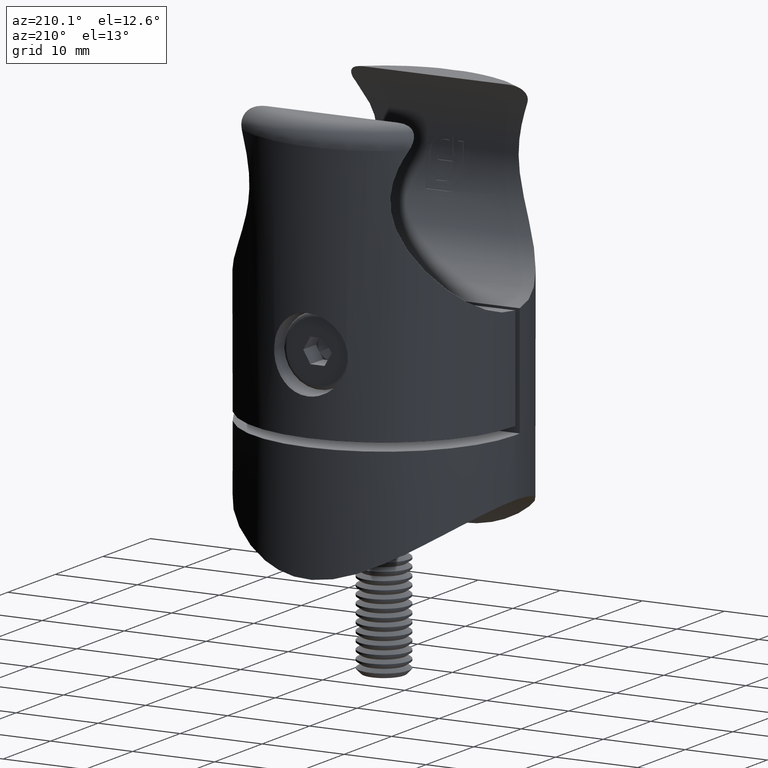
[diagram: clean part render]
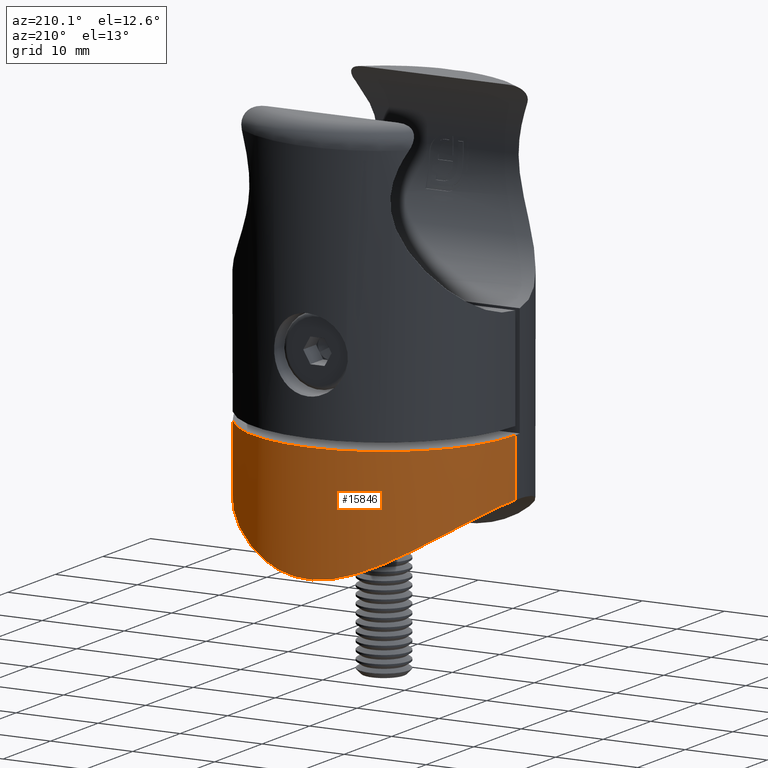
[diagram: same view with one face highlighted and labeled with its STEP entity id]
A machine part, auxiliary view. The second image highlights one B-rep face of the part: STEP entity #15846.
In plain terms, the highlighted cylindrical surface (partial cylindrical patch) has radius 16 mm, axis along (0, 0, 1).
Its self-contained STEP definition (entity closure, byte-faithful):
#26 = AXIS2_PLACEMENT_3D ( 'NONE', #10723, #1919, #4091 ) ;
#68 = CARTESIAN_POINT ( 'NONE',  ( -15.96452880321456647, 1.100008380205334202, -42.02675998522722978 ) ) ;
#720 = CARTESIAN_POINT ( 'NONE',  ( 16.00000000000000355, 0.5542606925784656635, -42.00000000000000711 ) ) ;
#916 = CARTESIAN_POINT ( 'NONE',  ( 2.991023286646064427, 15.72026244762108149, -48.97607672973620652 ) ) ;
#1919 = DIRECTION ( 'NONE',  ( -0.000000000000000000, -0.000000000000000000, -1.000000000000000000 ) ) ;
#2064 = EDGE_CURVE ( 'NONE', #10883, #11268, #2439, .T. ) ;
#2324 = CARTESIAN_POINT ( 'NONE',  ( -7.204038139751430592, 14.32298125231021224, -47.56024980068755781 ) ) ;
#2416 = CARTESIAN_POINT ( 'NONE',  ( -16.00000000000000000, 0.2738892623873222520, -42.00000000000001421 ) ) ;
#2439 = LINE ( 'NONE', #17904, #19355 ) ;
#2513 = CARTESIAN_POINT ( 'NONE',  ( 1.099552013496402969, 15.97148021988045663, -49.25873067180974374 ) ) ;
#2585 = CARTESIAN_POINT ( 'NONE',  ( 16.00000000000000000, 0.000000000000000000, -35.00000000000000000 ) ) ;
#2787 = VERTEX_POINT ( 'NONE', #2585 ) ;
#2931 = ORIENTED_EDGE ( 'NONE', *, *, #16913, .F. ) ;
#2985 = CARTESIAN_POINT ( 'NONE',  ( 8.513390459461021464, 13.55621954181084554, -46.89673594769825371 ) ) ;
#3239 = ORIENTED_EDGE ( 'NONE', *, *, #15127, .T. ) ;
#4091 = DIRECTION ( 'NONE',  ( 1.000000000000000000, 0.000000000000000000, 0.000000000000000000 ) ) ;
#4409 = CARTESIAN_POINT ( 'NONE',  ( -15.94301510169366232, 1.376933862125956365, -42.04298268208680156 ) ) ;
#4604 = CARTESIAN_POINT ( 'NONE',  ( -10.88482579018768170, 11.73759129943604584, -45.54093133733090326 ) ) ;
#4697 = CARTESIAN_POINT ( 'NONE',  ( -9.735309074388347028, 12.70731292112497712, -46.22597704744232061 ) ) ;
#4806 = FACE_OUTER_BOUND ( 'NONE', #18575, .T. ) ;
#4880 = CARTESIAN_POINT ( 'NONE',  ( 5.306591911262179551, 15.12948325122355797, -48.33890517105883333 ) ) ;
#4980 = CARTESIAN_POINT ( 'NONE',  ( 15.85587909496470971, 2.213250441365945953, -42.10859260608409471 ) ) ;
#6207 = AXIS2_PLACEMENT_3D ( 'NONE', #7096, #6722, #9085 ) ;
#6593 = CARTESIAN_POINT ( 'NONE',  ( -13.77158882654596006, 8.210125884070592406, -43.63172930366118152 ) ) ;
#6690 = CARTESIAN_POINT ( 'NONE',  ( -5.306246302712060547, 15.10377323214888001, -48.32154517539301963 ) ) ;
#6722 = DIRECTION ( 'NONE',  ( 0.000000000000000000, 0.000000000000000000, 1.000000000000000000 ) ) ;
#6874 = CIRCLE ( 'NONE', #26, 16.00000000000000000 ) ;
#7096 = CARTESIAN_POINT ( 'NONE',  ( 0.000000000000000000, 0.000000000000000000, -42.00000000000000000 ) ) ;
#7957 = CARTESIAN_POINT ( 'NONE',  ( 16.00000000000000000, 0.000000000000000000, -42.00000000000000000 ) ) ;
#8137 = DIRECTION ( 'NONE',  ( 0.000000000000000000, 0.000000000000000000, 1.000000000000000000 ) ) ;
#8173 = CARTESIAN_POINT ( 'NONE',  ( -16.00000000000000000, 1.959434877265706616E-15, -42.00000000000000000 ) ) ;
#8671 = B_SPLINE_CURVE_WITH_KNOTS ( 'NONE', 3,
 ( #17545, #2416, #10855, #68, #4409, #13119, #15189, #17259, #21812, #19634, #23884, #19542, #6593, #21707, #11132, #4604, #10943, #4697, #23975, #8771, #2324, #17454, #6690, #8868, #11040, #15475, #26126, #21911, #26228, #13298, #2513, #17631, #19823, #26699, #916, #9145, #4880, #26410, #18015, #11326, #2985, #24343, #24532, #13675, #18114, #13484, #26792, #11424, #15852, #9432, #15756, #17922, #9333, #13874, #15661, #17728, #4980, #17826, #720, #26499 ),
 .UNSPECIFIED., .F., .F.,
 ( 4, 2, 2, 2, 2, 2, 2, 2, 2, 2, 2, 2, 2, 2, 2, 2, 2, 2, 2, 2, 2, 2, 2, 2, 2, 2, 2, 2, 2, 4 ),
 ( 0.05244987792064193660, 0.05326770839351072095, 0.05408553886637949837, 0.05572119981211706014, 0.05735686075785462884, 0.05899252170359219061, 0.06226384359506732108, 0.06553516548654245155, 0.06717082643228000638, 0.06880648737801757509, 0.07207780926949272637, 0.07371347021523029508, 0.07534913116096786379, 0.07698479210670544637, 0.07862045305244302895, 0.08025611399818059766, 0.08107394447104938895, 0.08189177494391816636, 0.08516309683539333153, 0.08679875778113091411, 0.08843441872686848282, 0.09170574061834363411, 0.09334140156408121669, 0.09497706250981878540, 0.09824838440129393669, 0.09906621487416272798, 0.09988404534703151927, 0.1015197062927690880, 0.1031553672385066706, 0.1047910281842442393 ),
 .UNSPECIFIED. ) ;
#8771 = CARTESIAN_POINT ( 'NONE',  ( -8.083646360601823844, 13.84400772689993886, -47.12842063756470878 ) ) ;
#8868 = CARTESIAN_POINT ( 'NONE',  ( -4.296330019636395825, 15.42147087782464254, -48.65109558143795709 ) ) ;
#9085 = DIRECTION ( 'NONE',  ( 1.000000000000000000, 0.000000000000000000, 0.000000000000000000 ) ) ;
#9145 = CARTESIAN_POINT ( 'NONE',  ( 4.312529937501737187, 15.44564770774164053, -48.67490857807312210 ) ) ;
#9333 = CARTESIAN_POINT ( 'NONE',  ( 15.16648187581152918, 5.103904478137609502, -42.62187643016297756 ) ) ;
#9432 = CARTESIAN_POINT ( 'NONE',  ( 14.79045571496755862, 6.108425118409781973, -42.89747969315639153 ) ) ;
#10723 = CARTESIAN_POINT ( 'NONE',  ( 0.000000000000000000, 0.000000000000000000, -35.00000000000000000 ) ) ;
#10855 = CARTESIAN_POINT ( 'NONE',  ( -15.99297251459803171, 0.5486606350936718002, -42.00530531790570876 ) ) ;
#10883 = VERTEX_POINT ( 'NONE', #8173 ) ;
#10943 = CARTESIAN_POINT ( 'NONE',  ( -10.51282168242169490, 12.07197683574907643, -45.76840133130405519 ) ) ;
#11040 = CARTESIAN_POINT ( 'NONE',  ( -3.779389923972137577, 15.55646597810950915, -48.79643928708137679 ) ) ;
#11132 = CARTESIAN_POINT ( 'NONE',  ( -11.95328918555213171, 10.68273399593423534, -44.86930943597744914 ) ) ;
#11268 = VERTEX_POINT ( 'NONE', #16557 ) ;
#11326 = CARTESIAN_POINT ( 'NONE',  ( 8.084512069057423034, 13.81658312238696240, -47.11750277577247914 ) ) ;
#11424 = CARTESIAN_POINT ( 'NONE',  ( 13.76112425296245512, 8.225726633415201050, -43.63895898654791239 ) ) ;
#11498 = DIRECTION ( 'NONE',  ( 0.000000000000000000, 0.000000000000000000, 1.000000000000000000 ) ) ;
#12592 = CYLINDRICAL_SURFACE ( 'NONE', #6207, 16.00000000000000000 ) ;
#13119 = CARTESIAN_POINT ( 'NONE',  ( -15.85787855277590808, 2.197816502671374295, -42.10708846021536544 ) ) ;
#13298 = CARTESIAN_POINT ( 'NONE',  ( 0.5535856198231818848, 15.99987046206619645, -49.29158005969680545 ) ) ;
#13484 = CARTESIAN_POINT ( 'NONE',  ( 12.59243738853657746, 9.883621012896110614, -44.43966217744412717 ) ) ;
#13675 = CARTESIAN_POINT ( 'NONE',  ( 11.59872198134435628, 11.03280143266094449, -45.09218867240540618 ) ) ;
#13874 = CARTESIAN_POINT ( 'NONE',  ( 15.41042330677317196, 4.336693112401761141, -42.44164902602842204 ) ) ;
#15127 = EDGE_CURVE ( 'NONE', #11268, #2787, #6874, .T. ) ;
#15189 = CARTESIAN_POINT ( 'NONE',  ( -15.77360910764291901, 2.736074232999093248, -42.17046445160002577 ) ) ;
#15475 = CARTESIAN_POINT ( 'NONE',  ( -2.729570422965721832, 15.77456393158212222, -49.03563175756716674 ) ) ;
#15589 = VECTOR ( 'NONE', #8137, 1000.000000000000000 ) ;
#15661 = CARTESIAN_POINT ( 'NONE',  ( 15.54780851128311880, 3.815739271809957422, -42.33929817348173685 ) ) ;
#15756 = CARTESIAN_POINT ( 'NONE',  ( 14.89095161767278164, 5.859299870575017444, -42.82412319500942743 ) ) ;
#15846 = ADVANCED_FACE ( 'NONE', ( #4806 ), #12592, .T. ) ;
#15852 = CARTESIAN_POINT ( 'NONE',  ( 14.26363351473852603, 7.326374403168525618, -43.27997866725855403 ) ) ;
#16557 = CARTESIAN_POINT ( 'NONE',  ( -16.00000000000000000, 1.959434878635764737E-15, -35.00000000000000000 ) ) ;
#16913 = EDGE_CURVE ( 'NONE', #10883, #19657, #8671, .T. ) ;
#17006 = CARTESIAN_POINT ( 'NONE',  ( 16.00000000000000000, -2.283440923342182495E-16, -42.00000000000000711 ) ) ;
#17259 = CARTESIAN_POINT ( 'NONE',  ( -15.55269463684838271, 3.795594291035983670, -42.33565405847203067 ) ) ;
#17454 = CARTESIAN_POINT ( 'NONE',  ( -5.792366548638957724, 14.92347074692962394, -48.13987332628749982 ) ) ;
#17545 = CARTESIAN_POINT ( 'NONE',  ( -16.00000000000000000, 1.959434877265706616E-15, -42.00000000000000000 ) ) ;
#17631 = CARTESIAN_POINT ( 'NONE',  ( 1.912969340770308113, 15.88756894752551396, -49.16337128576039106 ) ) ;
#17728 = CARTESIAN_POINT ( 'NONE',  ( 15.77052997727151862, 2.754015237782993619, -42.17277605209391567 ) ) ;
#17826 = CARTESIAN_POINT ( 'NONE',  ( 15.97104773352705642, 1.110411492981603576, -42.02187615277049559 ) ) ;
#17904 = CARTESIAN_POINT ( 'NONE',  ( -16.00000000000000000, 1.959434878635764737E-15, -42.00000000000000000 ) ) ;
#17922 = CARTESIAN_POINT ( 'NONE',  ( 15.07884357163841749, 5.357267176019021804, -42.68640843366958393 ) ) ;
#18015 = CARTESIAN_POINT ( 'NONE',  ( 7.193095461538132618, 14.30093291550460322, -47.54662963156653177 ) ) ;
#18114 = CARTESIAN_POINT ( 'NONE',  ( 11.94353918680064552, 10.65867324783589964, -44.86890826658572706 ) ) ;
#18575 = EDGE_LOOP ( 'NONE', ( #2931, #25043, #3239, #19436 ) ) ;
#18632 = LINE ( 'NONE', #7957, #15589 ) ;
#19355 = VECTOR ( 'NONE', #11498, 1000.000000000000000 ) ;
#19436 = ORIENTED_EDGE ( 'NONE', *, *, #19581, .F. ) ;
#19542 = CARTESIAN_POINT ( 'NONE',  ( -14.27493206562718697, 7.303674323812303193, -43.27185502802498718 ) ) ;
#19581 = EDGE_CURVE ( 'NONE', #19657, #2787, #18632, .T. ) ;
#19634 = CARTESIAN_POINT ( 'NONE',  ( -15.09116906838931627, 5.342862069911315182, -42.67753899367820480 ) ) ;
#19657 = VERTEX_POINT ( 'NONE', #17006 ) ;
#19823 = CARTESIAN_POINT ( 'NONE',  ( 2.183186766375744270, 15.85269608775953820, -49.12392244898859417 ) ) ;
#21707 = CARTESIAN_POINT ( 'NONE',  ( -12.60407325331780903, 9.909599551179148591, -44.43505337570211111 ) ) ;
#21812 = CARTESIAN_POINT ( 'NONE',  ( -15.41604149265753065, 4.316853442667321517, -42.43747709914259758 ) ) ;
#21911 = CARTESIAN_POINT ( 'NONE',  ( -1.104492118667549594, 15.97124438327093898, -49.25845509848621617 ) ) ;
#23884 = CARTESIAN_POINT ( 'NONE',  ( -14.90251508552432824, 5.847596100310481049, -42.81607802677007868 ) ) ;
#23975 = CARTESIAN_POINT ( 'NONE',  ( -9.330413037744552440, 13.00745419563414451, -46.45562217832923579 ) ) ;
#24343 = CARTESIAN_POINT ( 'NONE',  ( 9.755460680588871725, 12.72110877374882065, -46.22580135423632441 ) ) ;
#24532 = CARTESIAN_POINT ( 'NONE',  ( 10.52475318256949244, 12.09304786471044935, -45.76726219278865671 ) ) ;
#25043 = ORIENTED_EDGE ( 'NONE', *, *, #2064, .T. ) ;
#26126 = CARTESIAN_POINT ( 'NONE',  ( -2.195096553658397287, 15.85818719496271534, -49.12998861831985664 ) ) ;
#26228 = CARTESIAN_POINT ( 'NONE',  ( -0.5460721900568110687, 16.00012865587711985, -49.29187708444803917 ) ) ;
#26410 = CARTESIAN_POINT ( 'NONE',  ( 6.728835041028744968, 14.52542854035830189, -47.75557458304442093 ) ) ;
#26499 = CARTESIAN_POINT ( 'NONE',  ( 16.00000000000000000, -2.283440923342182495E-16, -42.00000000000000711 ) ) ;
#26699 = CARTESIAN_POINT ( 'NONE',  ( 2.721824064661702902, 15.76914555290720799, -49.03038529090573405 ) ) ;
#26792 = CARTESIAN_POINT ( 'NONE',  ( 12.89838941912491066, 9.480998377327860993, -44.23253059015214461 ) ) ;